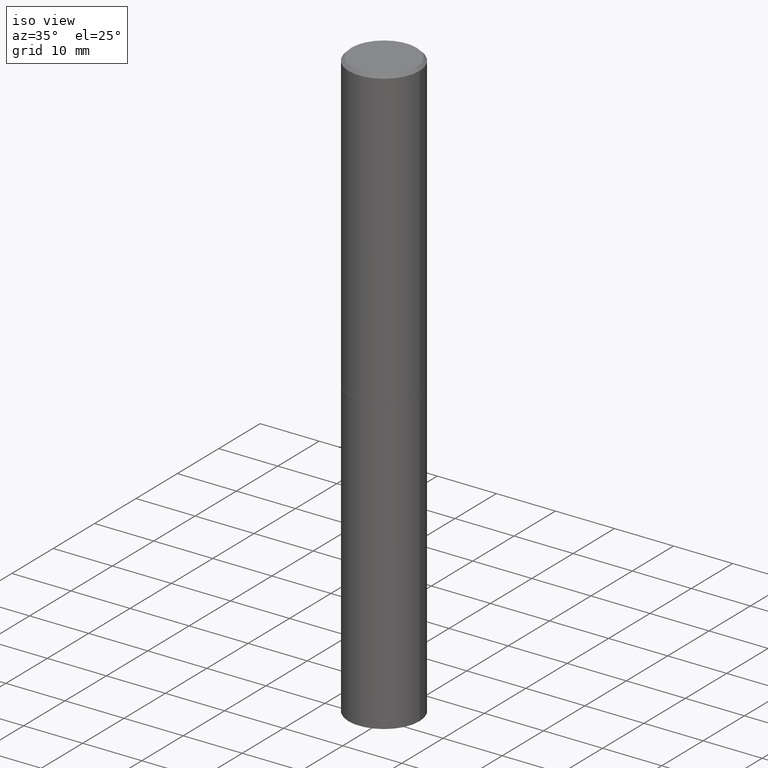
[diagram: clean part render]
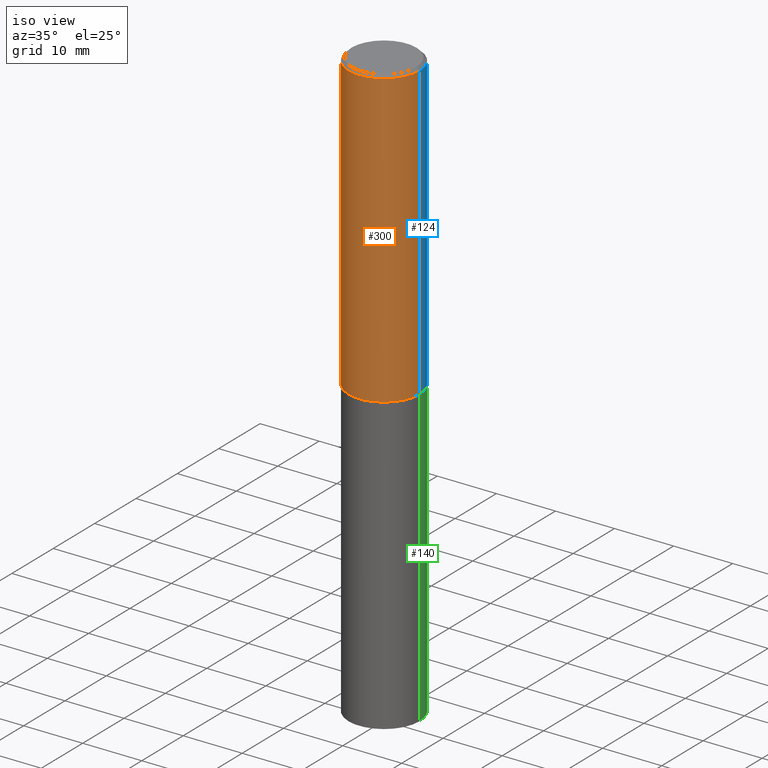
[diagram: same view with three faces highlighted in distinct colors, each labeled with its STEP entity id]
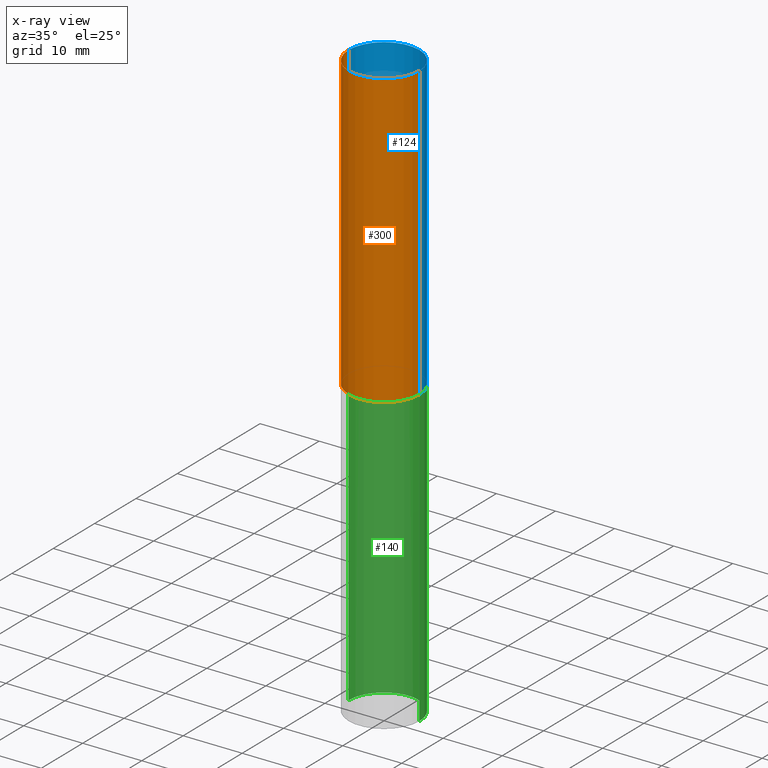
[diagram: x-ray of the same camera — body ghosted, the three highlighted faces saturated]
A machine part, iso view with three faces highlighted in distinct colors.
The next image is the same camera in x-ray (body ghosted, the three faces saturated) — at least one of them is partly hidden behind the body in this view.
Their STEP definitions:

[orange] entity #300 — the highlighted cylindrical surface (partial cylindrical patch) has radius 5.9995 mm, axis along (-0, 0, 1).
#2 = DIRECTION ( 'NONE',  ( -2.445468806185136597E-29, 3.491481338843145583E-15, 1.000000000000000000 ) ) ;
#20 = CARTESIAN_POINT ( 'NONE',  ( 0.2361999999999998823, -1.649375784469495539E-15, 1.151752954442999528E-29 ) ) ;
#23 = AXIS2_PLACEMENT_3D ( 'NONE', #80, #278, #137 ) ;
#35 = AXIS2_PLACEMENT_3D ( 'NONE', #112, #2, #309 ) ;
#45 = VERTEX_POINT ( 'NONE', #280 ) ;
#61 = EDGE_CURVE ( 'NONE', #342, #45, #65, .T. ) ;
#65 = LINE ( 'NONE', #91, #66 ) ;
#66 = VECTOR ( 'NONE', #174, 39.37007874015748143 ) ;
#77 = CARTESIAN_POINT ( 'NONE',  ( -0.2361999999999999933, -1.791357638610017633E-15, -1.967499999999999805 ) ) ;
#80 = CARTESIAN_POINT ( 'NONE',  ( 4.890937612370292426E-31, -6.982962677686317493E-17, -0.02000000000000007674 ) ) ;
#82 = AXIS2_PLACEMENT_3D ( 'NONE', #157, #336, #291 ) ;
#91 = CARTESIAN_POINT ( 'NONE',  ( -0.2361999999999998823, 1.678301941865355803E-15, -1.161852468318208336E-29 ) ) ;
#101 = CIRCLE ( 'NONE', #35, 0.2361999999999999933 ) ;
#112 = CARTESIAN_POINT ( 'NONE',  ( 4.811459876169255671E-29, -6.869489534173887122E-15, -1.967499999999999805 ) ) ;
#137 = DIRECTION ( 'NONE',  ( 1.000000000000000000, -6.982962677686266711E-15, 0.000000000000000000 ) ) ;
#148 = CARTESIAN_POINT ( 'NONE',  ( 0.2361999999999999933, -8.518865318643383648E-15, -1.967499999999999805 ) ) ;
#157 = CARTESIAN_POINT ( 'NONE',  ( 0.000000000000000000, 0.000000000000000000, 0.000000000000000000 ) ) ;
#163 = ORIENTED_EDGE ( 'NONE', *, *, #335, .T. ) ;
#174 = DIRECTION ( 'NONE',  ( -2.445468806185136877E-29, 3.491481338843145188E-15, 1.000000000000000000 ) ) ;
#181 = LINE ( 'NONE', #20, #200 ) ;
#191 = ORIENTED_EDGE ( 'NONE', *, *, #61, .F. ) ;
#200 = VECTOR ( 'NONE', #293, 39.37007874015748143 ) ;
#208 = CIRCLE ( 'NONE', #23, 0.2361999999999997990 ) ;
#213 = VERTEX_POINT ( 'NONE', #148 ) ;
#246 = VERTEX_POINT ( 'NONE', #298 ) ;
#251 = ORIENTED_EDGE ( 'NONE', *, *, #273, .F. ) ;
#257 = EDGE_LOOP ( 'NONE', ( #191, #292, #163, #251 ) ) ;
#273 = EDGE_CURVE ( 'NONE', #45, #246, #208, .T. ) ;
#276 = EDGE_CURVE ( 'NONE', #342, #213, #101, .T. ) ;
#278 = DIRECTION ( 'NONE',  ( -2.445468806185136597E-29, 3.491481338843145583E-15, 1.000000000000000000 ) ) ;
#280 = CARTESIAN_POINT ( 'NONE',  ( -0.2361999999999997990, 1.579546157692631649E-15, -0.02000000000000007674 ) ) ;
#291 = DIRECTION ( 'NONE',  ( 1.000000000000000000, -6.982962677686267499E-15, 4.876176775795936353E-29 ) ) ;
#292 = ORIENTED_EDGE ( 'NONE', *, *, #276, .T. ) ;
#293 = DIRECTION ( 'NONE',  ( -2.445468806185136877E-29, 3.491481338843145188E-15, 1.000000000000000000 ) ) ;
#298 = CARTESIAN_POINT ( 'NONE',  ( 0.2361999999999997990, -1.690279253850497391E-15, -0.02000000000000007674 ) ) ;
#300 = ADVANCED_FACE ( 'NONE', ( #319 ), #352, .T. ) ;
#309 = DIRECTION ( 'NONE',  ( 1.000000000000000000, -6.982962677686269077E-15, 0.000000000000000000 ) ) ;
#319 = FACE_OUTER_BOUND ( 'NONE', #257, .T. ) ;
#335 = EDGE_CURVE ( 'NONE', #213, #246, #181, .T. ) ;
#336 = DIRECTION ( 'NONE',  ( -2.445468806185136597E-29, 3.491481338843145583E-15, 1.000000000000000000 ) ) ;
#342 = VERTEX_POINT ( 'NONE', #77 ) ;
#352 = CYLINDRICAL_SURFACE ( 'NONE', #82, 0.2361999999999998823 ) ;

[blue] entity #124 — the highlighted cylindrical surface (partial cylindrical patch) has radius 5.9995 mm, axis along (-0, 0, 1).
#8 = CARTESIAN_POINT ( 'NONE',  ( 4.811459876169255671E-29, -6.869489534173887122E-15, -1.967499999999999805 ) ) ;
#20 = CARTESIAN_POINT ( 'NONE',  ( 0.2361999999999998823, -1.649375784469495539E-15, 1.151752954442999528E-29 ) ) ;
#21 = ORIENTED_EDGE ( 'NONE', *, *, #335, .F. ) ;
#36 = DIRECTION ( 'NONE',  ( 1.000000000000000000, -6.982962677686266711E-15, 0.000000000000000000 ) ) ;
#45 = VERTEX_POINT ( 'NONE', #280 ) ;
#49 = CARTESIAN_POINT ( 'NONE',  ( 0.000000000000000000, 0.000000000000000000, 0.000000000000000000 ) ) ;
#61 = EDGE_CURVE ( 'NONE', #342, #45, #65, .T. ) ;
#65 = LINE ( 'NONE', #91, #66 ) ;
#66 = VECTOR ( 'NONE', #174, 39.37007874015748143 ) ;
#76 = AXIS2_PLACEMENT_3D ( 'NONE', #8, #113, #343 ) ;
#77 = CARTESIAN_POINT ( 'NONE',  ( -0.2361999999999999933, -1.791357638610017633E-15, -1.967499999999999805 ) ) ;
#81 = AXIS2_PLACEMENT_3D ( 'NONE', #201, #189, #36 ) ;
#85 = ORIENTED_EDGE ( 'NONE', *, *, #161, .T. ) ;
#91 = CARTESIAN_POINT ( 'NONE',  ( -0.2361999999999998823, 1.678301941865355803E-15, -1.161852468318208336E-29 ) ) ;
#106 = CYLINDRICAL_SURFACE ( 'NONE', #321, 0.2361999999999998823 ) ;
#113 = DIRECTION ( 'NONE',  ( -2.445468806185136597E-29, 3.491481338843145583E-15, 1.000000000000000000 ) ) ;
#124 = ADVANCED_FACE ( 'NONE', ( #361 ), #106, .T. ) ;
#131 = ORIENTED_EDGE ( 'NONE', *, *, #210, .F. ) ;
#148 = CARTESIAN_POINT ( 'NONE',  ( 0.2361999999999999933, -8.518865318643383648E-15, -1.967499999999999805 ) ) ;
#161 = EDGE_CURVE ( 'NONE', #213, #342, #277, .T. ) ;
#174 = DIRECTION ( 'NONE',  ( -2.445468806185136877E-29, 3.491481338843145188E-15, 1.000000000000000000 ) ) ;
#181 = LINE ( 'NONE', #20, #200 ) ;
#189 = DIRECTION ( 'NONE',  ( -2.445468806185136597E-29, 3.491481338843145583E-15, 1.000000000000000000 ) ) ;
#192 = CIRCLE ( 'NONE', #81, 0.2361999999999997990 ) ;
#198 = EDGE_LOOP ( 'NONE', ( #85, #294, #131, #21 ) ) ;
#200 = VECTOR ( 'NONE', #293, 39.37007874015748143 ) ;
#201 = CARTESIAN_POINT ( 'NONE',  ( 4.890937612370292426E-31, -6.982962677686317493E-17, -0.02000000000000007674 ) ) ;
#210 = EDGE_CURVE ( 'NONE', #246, #45, #192, .T. ) ;
#213 = VERTEX_POINT ( 'NONE', #148 ) ;
#246 = VERTEX_POINT ( 'NONE', #298 ) ;
#277 = CIRCLE ( 'NONE', #76, 0.2361999999999999933 ) ;
#280 = CARTESIAN_POINT ( 'NONE',  ( -0.2361999999999997990, 1.579546157692631649E-15, -0.02000000000000007674 ) ) ;
#293 = DIRECTION ( 'NONE',  ( -2.445468806185136877E-29, 3.491481338843145188E-15, 1.000000000000000000 ) ) ;
#294 = ORIENTED_EDGE ( 'NONE', *, *, #61, .T. ) ;
#298 = CARTESIAN_POINT ( 'NONE',  ( 0.2361999999999997990, -1.690279253850497391E-15, -0.02000000000000007674 ) ) ;
#303 = DIRECTION ( 'NONE',  ( -2.445468806185136597E-29, 3.491481338843145583E-15, 1.000000000000000000 ) ) ;
#321 = AXIS2_PLACEMENT_3D ( 'NONE', #49, #303, #326 ) ;
#326 = DIRECTION ( 'NONE',  ( 1.000000000000000000, -6.982962677686267499E-15, 4.876176775795936353E-29 ) ) ;
#335 = EDGE_CURVE ( 'NONE', #213, #246, #181, .T. ) ;
#342 = VERTEX_POINT ( 'NONE', #77 ) ;
#343 = DIRECTION ( 'NONE',  ( 1.000000000000000000, -6.982962677686269077E-15, 0.000000000000000000 ) ) ;
#361 = FACE_OUTER_BOUND ( 'NONE', #198, .T. ) ;

[green] entity #140 — the highlighted cylindrical surface (partial cylindrical patch) has radius 5.9995 mm, axis along (-0, 0, 1).
#26 = CARTESIAN_POINT ( 'NONE',  ( 0.000000000000000000, 0.000000000000000000, 0.000000000000000000 ) ) ;
#28 = CIRCLE ( 'NONE', #38, 0.2361999999999999933 ) ;
#38 = AXIS2_PLACEMENT_3D ( 'NONE', #105, #308, #55 ) ;
#40 = DIRECTION ( 'NONE',  ( 1.000000000000000000, -6.982962677686265133E-15, 0.000000000000000000 ) ) ;
#48 = LINE ( 'NONE', #128, #254 ) ;
#52 = FACE_OUTER_BOUND ( 'NONE', #288, .T. ) ;
#55 = DIRECTION ( 'NONE',  ( 1.000000000000000000, -6.982962677686265133E-15, 0.000000000000000000 ) ) ;
#75 = DIRECTION ( 'NONE',  ( -2.445468806185136877E-29, 3.491481338843145188E-15, 1.000000000000000000 ) ) ;
#78 = DIRECTION ( 'NONE',  ( 1.000000000000000000, -6.982962677686266711E-15, 4.876176775795936353E-29 ) ) ;
#95 = CIRCLE ( 'NONE', #228, 0.2361999999999999933 ) ;
#103 = CYLINDRICAL_SURFACE ( 'NONE', #171, 0.2361999999999999933 ) ;
#105 = CARTESIAN_POINT ( 'NONE',  ( 4.813905344975440714E-29, -6.872981015512730918E-15, -1.968499999999999694 ) ) ;
#109 = ORIENTED_EDGE ( 'NONE', *, *, #147, .T. ) ;
#128 = CARTESIAN_POINT ( 'NONE',  ( 0.2361999999999999933, -1.649375784469496131E-15, 1.151752954443000088E-29 ) ) ;
#138 = VERTEX_POINT ( 'NONE', #299 ) ;
#139 = CARTESIAN_POINT ( 'NONE',  ( -0.2361999999999999933, 1.678301941865356591E-15, -1.161852468318208757E-29 ) ) ;
#140 = ADVANCED_FACE ( 'NONE', ( #52 ), #103, .T. ) ;
#147 = EDGE_CURVE ( 'NONE', #138, #215, #333, .T. ) ;
#152 = EDGE_CURVE ( 'NONE', #230, #215, #28, .T. ) ;
#167 = VERTEX_POINT ( 'NONE', #173 ) ;
#171 = AXIS2_PLACEMENT_3D ( 'NONE', #26, #212, #78 ) ;
#173 = CARTESIAN_POINT ( 'NONE',  ( 0.2361999999999999933, -1.539533781549495994E-14, -3.937000000000000277 ) ) ;
#180 = ORIENTED_EDGE ( 'NONE', *, *, #152, .F. ) ;
#204 = EDGE_CURVE ( 'NONE', #167, #138, #95, .T. ) ;
#205 = CARTESIAN_POINT ( 'NONE',  ( -0.2361999999999999933, -8.631169581403741167E-15, -1.968499999999999694 ) ) ;
#212 = DIRECTION ( 'NONE',  ( -2.445468806185136597E-29, 3.491481338843145583E-15, 1.000000000000000000 ) ) ;
#214 = DIRECTION ( 'NONE',  ( -2.445468806185136877E-29, 3.491481338843145188E-15, 1.000000000000000000 ) ) ;
#215 = VERTEX_POINT ( 'NONE', #205 ) ;
#228 = AXIS2_PLACEMENT_3D ( 'NONE', #331, #295, #40 ) ;
#230 = VERTEX_POINT ( 'NONE', #301 ) ;
#254 = VECTOR ( 'NONE', #214, 39.37007874015748143 ) ;
#263 = ORIENTED_EDGE ( 'NONE', *, *, #204, .T. ) ;
#264 = ORIENTED_EDGE ( 'NONE', *, *, #353, .F. ) ;
#267 = VECTOR ( 'NONE', #75, 39.37007874015748143 ) ;
#288 = EDGE_LOOP ( 'NONE', ( #263, #109, #180, #264 ) ) ;
#295 = DIRECTION ( 'NONE',  ( -2.445468806185136597E-29, 3.491481338843145583E-15, 1.000000000000000000 ) ) ;
#299 = CARTESIAN_POINT ( 'NONE',  ( -0.2361999999999999933, -8.631169581403741167E-15, -3.937000000000000277 ) ) ;
#301 = CARTESIAN_POINT ( 'NONE',  ( 0.2361999999999999933, -8.522356799982226655E-15, -1.968499999999999694 ) ) ;
#308 = DIRECTION ( 'NONE',  ( -2.445468806185136597E-29, 3.491481338843145583E-15, 1.000000000000000000 ) ) ;
#331 = CARTESIAN_POINT ( 'NONE',  ( 9.627810689950883669E-29, -1.374596203102546341E-14, -3.937000000000000277 ) ) ;
#333 = LINE ( 'NONE', #139, #267 ) ;
#353 = EDGE_CURVE ( 'NONE', #167, #230, #48, .T. ) ;